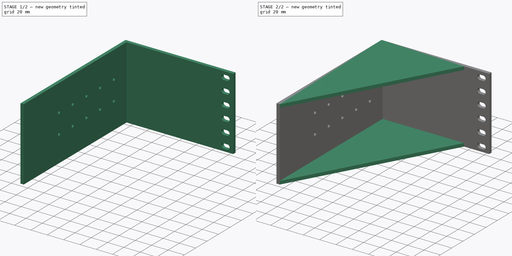
[diagram: build sequence overview — one tinted view per stage of 2, left to right]
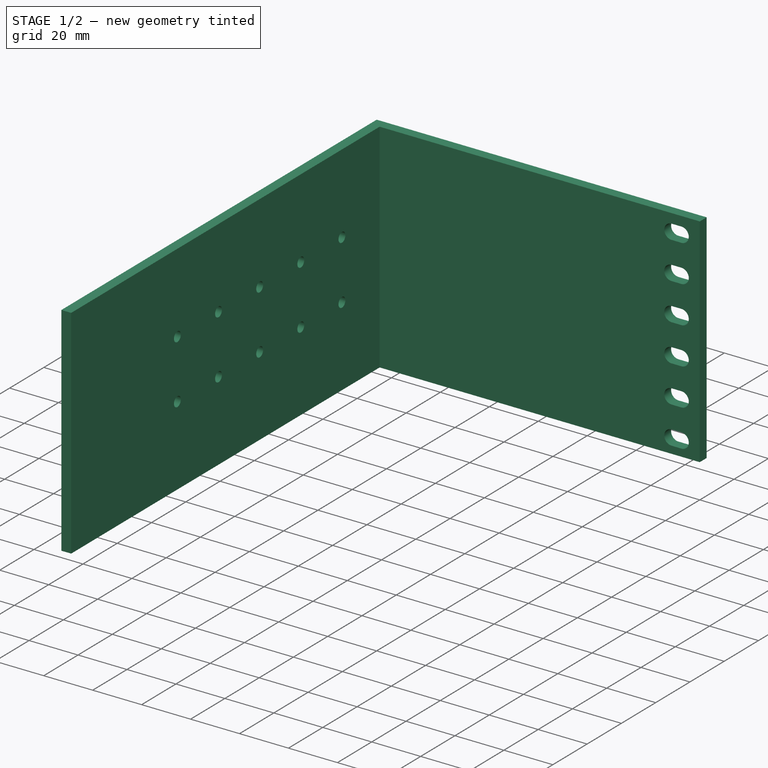
[diagram: stage 1 of 2 — iso view after this stage's code; geometry added in this stage tinted green]
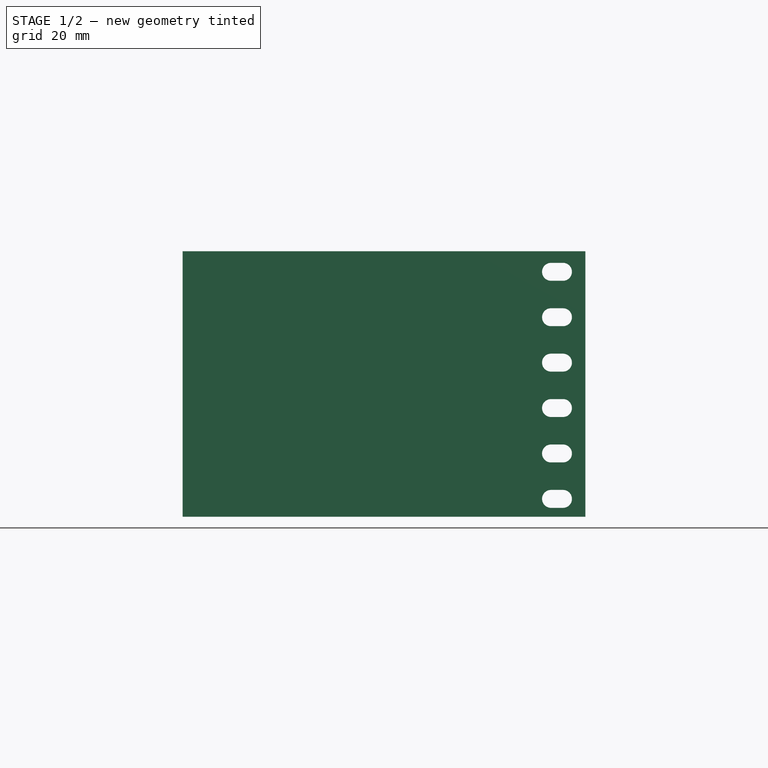
[diagram: stage 1 of 2 — front view after this stage's code; geometry added in this stage tinted green]
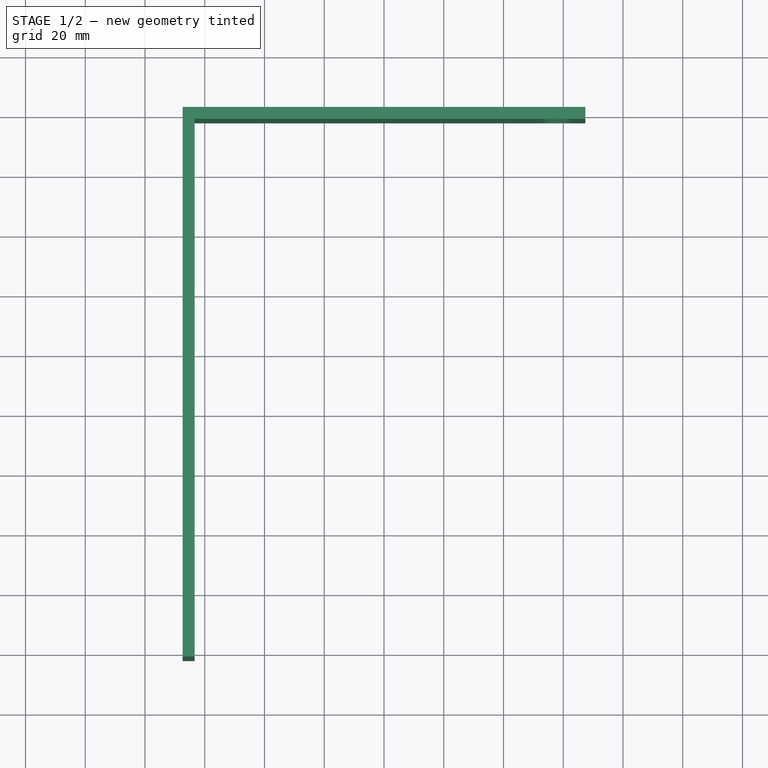
[diagram: stage 1 of 2 — top view after this stage's code; geometry added in this stage tinted green]
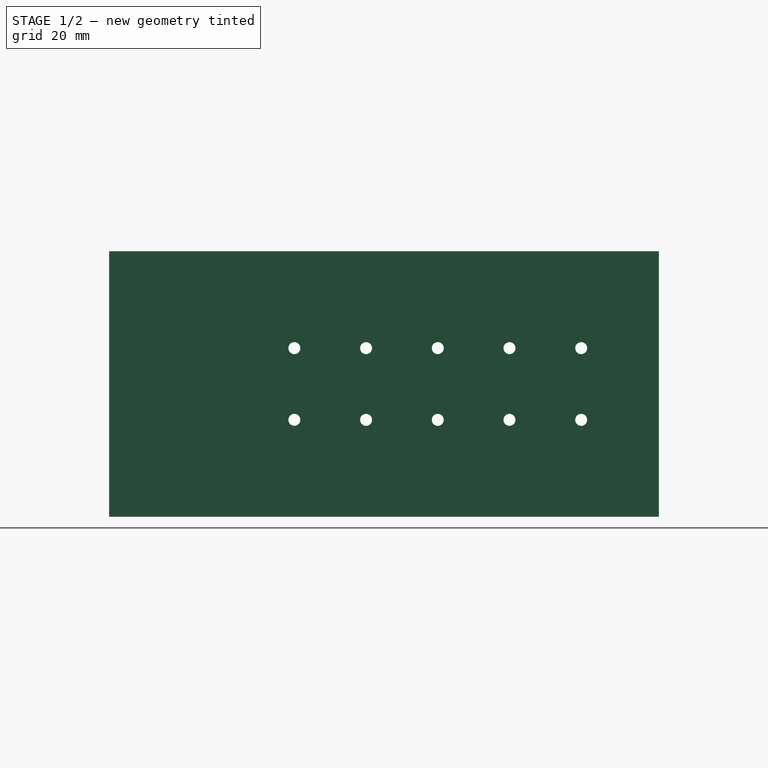
[diagram: stage 1 of 2 — right view after this stage's code; geometry added in this stage tinted green]
FCSTD DOCUMENT  (FreeCAD 1.0R38641 +678 (Git))
Label: mount
License: All rights reserved
LicenseURL: https://en.wikipedia.org/wiki/All_rights_reserved
objects: Sketcher::SketchObject×6, PartDesign::Pad×4, PartDesign::Plane×3, PartDesign::Body×1
note: 28 computed .brp shape members not serialized (recipe doc carries the construction recipe); baked Part::Feature solids carry a one-line shape summary decoded from their .brp

FEATURE [Sketcher::SketchObject] Sketch
  ArcFitTolerance = 1e-06
  AttachmentSupport = -> [XZ_Plane]
  FullyConstrained = true
  MakeInternals = false
  MapMode = 5
  Placement = pos=(0,0,0) rot=(1,0,0;1.5708rad)
  sketch-geometry (65):
    g0: LineSegment StartX=-67.4 StartY=-44.45 StartZ=0 EndX=67.4 EndY=-44.45 EndZ=0
    g1: LineSegment StartX=67.4 StartY=-44.45 StartZ=0 EndX=67.4 EndY=44.45 EndZ=0
    g2: LineSegment StartX=67.4 StartY=44.45 StartZ=0 EndX=-67.4 EndY=44.45 EndZ=0
    g3: LineSegment StartX=-67.4 StartY=44.45 StartZ=0 EndX=-67.4 EndY=-44.45 EndZ=0
    g4: GeomPoint [constr] X=0 Y=0 Z=0
    g5: LineSegment StartX=52.9 StartY=-38.44 StartZ=0 EndX=52.9 EndY=-38.46 EndZ=0
    g6: LineSegment StartX=55.89 StartY=-41.45 StartZ=0 EndX=59.91 EndY=-41.45 EndZ=0
    g7: LineSegment StartX=62.9 StartY=-38.46 StartZ=0 EndX=62.9 EndY=-38.44 EndZ=0
    g8: LineSegment StartX=59.91 StartY=-35.45 StartZ=0 EndX=55.89 EndY=-35.45 EndZ=0
    g9: ArcOfCircle CenterX=55.89 CenterY=-38.44 CenterZ=0 NormalX=0 NormalY=0 NormalZ=1 AngleXU=0 Radius=2.99 StartAngle=1.5708 EndAngle=3.14159
    g10: ArcOfCircle CenterX=55.89 CenterY=-38.46 CenterZ=0 NormalX=0 NormalY=0 NormalZ=1 AngleXU=0 Radius=2.99 StartAngle=3.14159 EndAngle=4.71239
    g11: ArcOfCircle CenterX=59.91 CenterY=-38.46 CenterZ=0 NormalX=0 NormalY=0 NormalZ=1 AngleXU=0 Radius=2.99 StartAngle=4.71239 EndAngle=6.28319
    g12: ArcOfCircle CenterX=59.91 CenterY=-38.44 CenterZ=0 NormalX=0 NormalY=0 NormalZ=1 AngleXU=0 Radius=2.99 StartAngle=-9e-16 EndAngle=1.5708
    g13: GeomPoint [constr] X=52.9 Y=-35.45 Z=0
    g14: GeomPoint [constr] X=62.9 Y=-41.45 Z=0
    g15: LineSegment StartX=52.9 StartY=-23.245 StartZ=0 EndX=52.9 EndY=-23.255 EndZ=0
    g16: LineSegment StartX=55.895 StartY=-26.25 StartZ=0 EndX=59.905 EndY=-26.25 EndZ=0
    g17: LineSegment StartX=62.9 StartY=-23.255 StartZ=0 EndX=62.9 EndY=-23.245 EndZ=0
    g18: LineSegment StartX=59.905 StartY=-20.25 StartZ=0 EndX=55.895 EndY=-20.25 EndZ=0
    g19: ArcOfCircle CenterX=55.895 CenterY=-23.245 CenterZ=0 NormalX=0 NormalY=0 NormalZ=1 AngleXU=0 Radius=2.995 StartAngle=1.5708 EndAngle=3.14159
    g20: ArcOfCircle CenterX=55.895 CenterY=-23.255 CenterZ=0 NormalX=0 NormalY=0 NormalZ=1 AngleXU=0 Radius=2.995 StartAngle=3.14159 EndAngle=4.71239
    g21: ArcOfCircle CenterX=59.905 CenterY=-23.255 CenterZ=0 NormalX=0 NormalY=0 NormalZ=1 AngleXU=0 Radius=2.995 StartAngle=4.71239 EndAngle=6.28319
    g22: ArcOfCircle CenterX=59.905 CenterY=-23.245 CenterZ=0 NormalX=0 NormalY=0 NormalZ=1 AngleXU=0 Radius=2.995 StartAngle=0 EndAngle=1.5708
    g23: GeomPoint [constr] X=52.9 Y=-20.25 Z=0
    g24: GeomPoint [constr] X=62.9 Y=-26.25 Z=0
    g25: LineSegment StartX=52.9 StartY=-8.045 StartZ=0 EndX=52.9 EndY=-8.055 EndZ=0
    g26: LineSegment StartX=55.895 StartY=-11.05 StartZ=0 EndX=59.905 EndY=-11.05 EndZ=0
    g27: LineSegment StartX=62.9 StartY=-8.055 StartZ=0 EndX=62.9 EndY=-8.045 EndZ=0
    g28: LineSegment StartX=59.905 StartY=-5.05 StartZ=0 EndX=55.895 EndY=-5.05 EndZ=0
    g29: ArcOfCircle CenterX=55.895 CenterY=-8.045 CenterZ=0 NormalX=0 NormalY=0 NormalZ=1 AngleXU=0 Radius=2.995 StartAngle=1.5708 EndAngle=3.14159
    g30: ArcOfCircle CenterX=55.895 CenterY=-8.055 CenterZ=0 NormalX=0 NormalY=0 NormalZ=1 AngleXU=0 Radius=2.995 StartAngle=3.14159 EndAngle=4.71239
    g31: ArcOfCircle CenterX=59.905 CenterY=-8.055 CenterZ=0 NormalX=0 NormalY=0 NormalZ=1 AngleXU=0 Radius=2.995 StartAngle=4.71239 EndAngle=6.28319
    g32: ArcOfCircle CenterX=59.905 CenterY=-8.045 CenterZ=0 NormalX=0 NormalY=0 NormalZ=1 AngleXU=0 Radius=2.995 StartAngle=0 EndAngle=1.5708
    g33: GeomPoint [constr] X=52.9 Y=-5.05 Z=0
    g34: GeomPoint [constr] X=62.9 Y=-11.05 Z=0
    g35: LineSegment StartX=52.9 StartY=7.155 StartZ=0 EndX=52.9 EndY=7.145 EndZ=0
    g36: LineSegment StartX=55.895 StartY=4.15 StartZ=0 EndX=59.905 EndY=4.15 EndZ=0
    g37: LineSegment StartX=62.9 StartY=7.145 StartZ=0 EndX=62.9 EndY=7.155 EndZ=0
    g38: LineSegment StartX=59.905 StartY=10.15 StartZ=0 EndX=55.895 EndY=10.15 EndZ=0
    g39: ArcOfCircle CenterX=55.895 CenterY=7.155 CenterZ=0 NormalX=0 NormalY=0 NormalZ=1 AngleXU=0 Radius=2.995 StartAngle=1.5708 EndAngle=3.14159
    g40: ArcOfCircle CenterX=55.895 CenterY=7.145 CenterZ=0 NormalX=0 NormalY=0 NormalZ=1 AngleXU=0 Radius=2.995 StartAngle=3.14159 EndAngle=4.71239
    g41: ArcOfCircle CenterX=59.905 CenterY=7.145 CenterZ=0 NormalX=0 NormalY=0 NormalZ=1 AngleXU=0 Radius=2.995 StartAngle=4.71239 EndAngle=6.28319
    g42: ArcOfCircle CenterX=59.905 CenterY=7.155 CenterZ=0 NormalX=0 NormalY=0 NormalZ=1 AngleXU=0 Radius=2.995 StartAngle=0 EndAngle=1.5708
    g43: GeomPoint [constr] X=52.9 Y=10.15 Z=0
    g44: GeomPoint [constr] X=62.9 Y=4.15 Z=0
    g45: LineSegment StartX=52.9 StartY=22.355 StartZ=0 EndX=52.9 EndY=22.345 EndZ=0
    g46: LineSegment StartX=55.895 StartY=19.35 StartZ=0 EndX=59.905 EndY=19.35 EndZ=0
    g47: LineSegment StartX=62.9 StartY=22.345 StartZ=0 EndX=62.9 EndY=22.355 EndZ=0
    g48: LineSegment StartX=59.905 StartY=25.35 StartZ=0 EndX=55.895 EndY=25.35 EndZ=0
    g49: ArcOfCircle CenterX=55.895 CenterY=22.355 CenterZ=0 NormalX=0 NormalY=0 NormalZ=1 AngleXU=0 Radius=2.995 StartAngle=1.5708 EndAngle=3.14159
    g50: ArcOfCircle CenterX=55.895 CenterY=22.345 CenterZ=0 NormalX=0 NormalY=0 NormalZ=1 AngleXU=0 Radius=2.995 StartAngle=3.14159 EndAngle=4.71239
    g51: ArcOfCircle CenterX=59.905 CenterY=22.345 CenterZ=0 NormalX=0 NormalY=0 NormalZ=1 AngleXU=0 Radius=2.995 StartAngle=4.71239 EndAngle=6.28319
    g52: ArcOfCircle CenterX=59.905 CenterY=22.355 CenterZ=0 NormalX=0 NormalY=0 NormalZ=1 AngleXU=0 Radius=2.995 StartAngle=0 EndAngle=1.5708
    g53: GeomPoint [constr] X=52.9 Y=25.35 Z=0
    g54: GeomPoint [constr] X=62.9 Y=19.35 Z=0
    g55: LineSegment StartX=52.9 StartY=37.555 StartZ=0 EndX=52.9 EndY=37.545 EndZ=0
    g56: LineSegment StartX=55.895 StartY=34.55 StartZ=0 EndX=59.905 EndY=34.55 EndZ=0
    g57: LineSegment StartX=62.9 StartY=37.545 StartZ=0 EndX=62.9 EndY=37.555 EndZ=0
    g58: LineSegment StartX=59.905 StartY=40.55 StartZ=0 EndX=55.895 EndY=40.55 EndZ=0
    g59: ArcOfCircle CenterX=55.895 CenterY=37.555 CenterZ=0 NormalX=0 NormalY=0 NormalZ=1 AngleXU=0 Radius=2.995 StartAngle=1.5708 EndAngle=3.14159
    g60: ArcOfCircle CenterX=55.895 CenterY=37.545 CenterZ=0 NormalX=0 NormalY=0 NormalZ=1 AngleXU=0 Radius=2.995 StartAngle=3.14159 EndAngle=4.71239
    g61: ArcOfCircle CenterX=59.905 CenterY=37.545 CenterZ=0 NormalX=0 NormalY=0 NormalZ=1 AngleXU=0 Radius=2.995 StartAngle=4.71239 EndAngle=6.28319
    g62: ArcOfCircle CenterX=59.905 CenterY=37.555 CenterZ=0 NormalX=0 NormalY=0 NormalZ=1 AngleXU=0 Radius=2.995 StartAngle=2e-16 EndAngle=1.5708
    g63: GeomPoint [constr] X=52.9 Y=40.55 Z=0
    g64: GeomPoint [constr] X=62.9 Y=34.55 Z=0
  constraints (156):
    c: Coincident(g0,g1)
    c: Coincident(g1,g2)
    c: Coincident(g2,g3)
    c: Coincident(g3,g0)
    c: Horizontal(g0)
    c: Horizontal(g2)
    c: Vertical(g1)
    c: Vertical(g3)
    c: Symmetric(g2,g0,g4)
    c: Distance(g1,g3) = 134.8
    c: Distance(g0,g2) = 88.9
    c: Coincident(g4,g-1)
    c: Tangent(g5,g9) = -1.5708
    c: Tangent(g5,g10) = -1.5708
    c: Tangent(g6,g10) = -1.5708
    c: Tangent(g6,g11) = -1.5708
    c: Tangent(g7,g11) = -1.5708
    c: Tangent(g7,g12) = -1.5708
    c: Tangent(g8,g12) = -1.5708
    c: Tangent(g8,g9) = -1.5708
    c: Vertical(g5)
    c: Vertical(g7)
    c: Horizontal(g6)
    c: Horizontal(g8)
    c: Equal(g9,g10)
    c: Equal(g10,g11)
    c: Equal(g11,g12)
    c: PointOnObject(g13,g5)
    c: PointOnObject(g13,g8)
    c: PointOnObject(g14,g6)
    c: PointOnObject(g14,g7)
    c: Distance(g5,g7) = 10
    c: Distance(g6,g8) = 6
    c: Distance(g7,g1) = 4.5
    c: Distance(g0,g6) = 3
    c: Tangent(g15,g19) = -1.5708
    c: Tangent(g15,g20) = -1.5708
    c: Tangent(g16,g20) = -1.5708
    c: Tangent(g16,g21) = -1.5708
    c: Tangent(g17,g21) = -1.5708
    c: Tangent(g17,g22) = -1.5708
    c: Tangent(g18,g22) = -1.5708
    c: Tangent(g18,g19) = -1.5708
    c: Vertical(g15)
    c: Vertical(g17)
    c: Horizontal(g16)
    c: Horizontal(g18)
    c: Equal(g19,g20)
    c: Equal(g20,g21)
    c: Equal(g21,g22)
    c: PointOnObject(g23,g15)
    c: PointOnObject(g23,g18)
    c: PointOnObject(g24,g16)
    c: PointOnObject(g24,g17)
    c: Distance(g15,g17) = 10
    c: Distance(g16,g18) = 6
    c: Distance(g17,g1) = 4.5
    c: Distance(g8,g16) = 9.2
    c: Tangent(g25,g29) = -1.5708
    c: Tangent(g25,g30) = -1.5708
    c: Tangent(g26,g30) = -1.5708
    c: Tangent(g26,g31) = -1.5708
    c: Tangent(g27,g31) = -1.5708
    c: Tangent(g27,g32) = -1.5708
    c: Tangent(g28,g32) = -1.5708
    c: Tangent(g28,g29) = -1.5708
    c: Vertical(g25)
    c: Vertical(g27)
    c: Horizontal(g26)
    c: Horizontal(g28)
    c: Equal(g29,g30)
    c: Equal(g30,g31)
    c: Equal(g31,g32)
    c: PointOnObject(g33,g25)
    c: PointOnObject(g33,g28)
    c: PointOnObject(g34,g26)
    c: PointOnObject(g34,g27)
    c: Distance(g25,g27) = 10
    c: Distance(g26,g28) = 6
    c: Distance(g27,g1) = 4.5
    c: Distance(g18,g26) = 9.2
    c: DistanceX(g10,g12) = 4.02
    c: DistanceX(g19,g22) = 4.01
    c: DistanceX(g29,g32) = 4.01
    c: Tangent(g35,g39) = -1.5708
    c: Tangent(g35,g40) = -1.5708
    c: Tangent(g36,g40) = -1.5708
    c: Tangent(g36,g41) = -1.5708
    c: Tangent(g37,g41) = -1.5708
    c: Tangent(g37,g42) = -1.5708
    c: Tangent(g38,g42) = -1.5708
    c: Tangent(g38,g39) = -1.5708
    c: Vertical(g35)
    c: Vertical(g37)
    c: Horizontal(g36)
    c: Horizontal(g38)
    c: Equal(g39,g40)
    c: Equal(g40,g41)
    c: Equal(g41,g42)
    c: PointOnObject(g43,g35)
    c: PointOnObject(g43,g38)
    c: PointOnObject(g44,g36)
    c: PointOnObject(g44,g37)
    c: Distance(g35,g37) = 10
    c: Distance(g36,g38) = 6
    c: Distance(g28,g36) = 9.2
    c: Distance(g37,g1) = 4.5
    c: DistanceX(g39,g42) = 4.01
    c: Tangent(g45,g49) = -1.5708
    c: Tangent(g45,g50) = -1.5708
    c: Tangent(g46,g50) = -1.5708
    c: Tangent(g46,g51) = -1.5708
    c: Tangent(g47,g51) = -1.5708
    c: Tangent(g47,g52) = -1.5708
    c: Tangent(g48,g52) = -1.5708
    c: Tangent(g48,g49) = -1.5708
    c: Vertical(g45)
    c: Vertical(g47)
    c: Horizontal(g46)
    c: Horizontal(g48)
    c: Equal(g49,g50)
    c: Equal(g50,g51)
    c: Equal(g51,g52)
    c: PointOnObject(g53,g45)
    c: PointOnObject(g53,g48)
    c: PointOnObject(g54,g46)
    c: PointOnObject(g54,g47)
    c: Distance(g45,g47) = 10
    c: Distance(g46,g48) = 6
    c: Distance(g47,g1) = 4.5
    c: Distance(g38,g46) = 9.2
    c: DistanceX(g49,g52) = 4.01
    c: Tangent(g55,g59) = -1.5708
    c: Tangent(g55,g60) = -1.5708
    c: Tangent(g56,g60) = -1.5708
    c: Tangent(g56,g61) = -1.5708
    c: Tangent(g57,g61) = -1.5708
    c: Tangent(g57,g62) = -1.5708
    c: Tangent(g58,g62) = -1.5708
    c: Tangent(g58,g59) = -1.5708
    c: Vertical(g55)
    c: Vertical(g57)
    c: Horizontal(g56)
    c: Horizontal(g58)
    c: Equal(g59,g60)
    c: Equal(g60,g61)
    c: Equal(g61,g62)
    c: PointOnObject(g63,g55)
    c: PointOnObject(g63,g58)
    c: PointOnObject(g64,g56)
    c: PointOnObject(g64,g57)
    c: Distance(g55,g57) = 10
    c: Distance(g56,g58) = 6
    c: Distance(g48,g56) = 9.2
    c: Distance(g57,g1) = 4.5
    c: DistanceX(g59,g62) = 4.01
FEATURE [PartDesign::Pad] Pad
  Direction = (0,-1,2e-16)
  Length = 4
  Length2 = 10
  Midplane = true
  Placement = pos=(0,0,0) rot=(1,0,0;1.5708rad)
  Profile = -> Sketch
  ReferenceAxis = -> Sketch [N_Axis]
  Refine = true
  Suppressed = false
  Type = 0
FEATURE [PartDesign::Plane] DatumPlane
  AttachmentSupport = -> [Pad]
  Length = 81.2356
  MapMode = 5
  Placement = pos=(-67.4,0,0) rot=(0.707107,0,-0.707107;3.14159rad)
  ResizeMode = 0
  Width = 61.7856
FEATURE [Sketcher::SketchObject] Sketch001
  ArcFitTolerance = 1e-06
  AttachmentSupport = -> [DatumPlane]
  ExternalGeometry = -> [Pad]
  FullyConstrained = true
  MakeInternals = false
  MapMode = 5
  Placement = pos=(-67.4,0,0) rot=(0.707107,0,-0.707107;3.14159rad)
  sketch-geometry (14):
    g0: LineSegment StartX=-44.45 StartY=2 StartZ=0 EndX=44.45 EndY=2 EndZ=0
    g1: LineSegment StartX=44.45 StartY=2 StartZ=0 EndX=44.45 EndY=182 EndZ=0
    g2: LineSegment StartX=44.45 StartY=182 StartZ=0 EndX=-44.45 EndY=182 EndZ=0
    g3: LineSegment StartX=-44.45 StartY=182 StartZ=0 EndX=-44.45 EndY=2 EndZ=0
    g4: Circle CenterX=12 CenterY=24 CenterZ=0 NormalX=0 NormalY=0 NormalZ=1 AngleXU=0 Radius=2
    g5: Circle CenterX=12 CenterY=48 CenterZ=0 NormalX=0 NormalY=0 NormalZ=1 AngleXU=0 Radius=2
    g6: Circle CenterX=-12 CenterY=24 CenterZ=0 NormalX=0 NormalY=0 NormalZ=1 AngleXU=0 Radius=2
    g7: Circle CenterX=-12 CenterY=120 CenterZ=0 NormalX=0 NormalY=0 NormalZ=1 AngleXU=0 Radius=2
    g8: Circle CenterX=-12 CenterY=48 CenterZ=0 NormalX=0 NormalY=0 NormalZ=1 AngleXU=0 Radius=2
    g9: Circle CenterX=12 CenterY=72 CenterZ=0 NormalX=0 NormalY=0 NormalZ=1 AngleXU=0 Radius=2
    g10: Circle CenterX=-12 CenterY=72 CenterZ=0 NormalX=0 NormalY=0 NormalZ=1 AngleXU=0 Radius=2
    g11: Circle CenterX=12 CenterY=96 CenterZ=0 NormalX=0 NormalY=0 NormalZ=1 AngleXU=0 Radius=2
    g12: Circle CenterX=-12 CenterY=96 CenterZ=0 NormalX=0 NormalY=0 NormalZ=1 AngleXU=0 Radius=2
    g13: Circle CenterX=12 CenterY=120 CenterZ=0 NormalX=0 NormalY=0 NormalZ=1 AngleXU=0 Radius=2
  constraints (41):
    c: Coincident(g0,g1)
    c: Coincident(g1,g2)
    c: Coincident(g2,g3)
    c: Coincident(g3,g0)
    c: Horizontal(g0)
    c: Horizontal(g2)
    c: Vertical(g1)
    c: Vertical(g3)
    c: Coincident(g0,g-3)
    c: Distance(g1,g3) = 88.9
    c: Distance(g0,g2) = 180
    c: Diameter(g4) = 4
    c: Diameter(g5) = 4
    c: Diameter(g6) = 4
    c: Diameter(g7) = 4
    c: Diameter(g8) = 4
    c: Diameter(g9) = 4
    c: Diameter(g10) = 4
    c: Diameter(g11) = 4
    c: Diameter(g12) = 4
    c: Diameter(g13) = 4
    c: Distance(g4,g1) = 30.45
    c: Distance(g4,g0) = 20
    c: Distance(g5,g1) = 30.45
    c: Distance(g5,g4) = 20
    c: Distance(g6,g0) = 20
    c: Distance(g6,g4) = 20
    c: Distance(g8,g5) = 20
    c: Distance(g8,g6) = 20
    c: Distance(g9,g5) = 20
    c: Distance(g9,g1) = 30.45
    c: Distance(g10,g9) = 20
    c: Distance(g10,g8) = 20
    c: Distance(g11,g9) = 20
    c: Distance(g12,g11) = 20
    c: Distance(g11,g1) = 30.45
    c: Distance(g12,g10) = 20
    c: Distance(g13,g11) = 20
    c: Distance(g7,g12) = 20
    c: Distance(g13,g1) = 30.45
    c: Distance(g7,g13) = 20
FEATURE [PartDesign::Pad] Pad001
  BaseFeature = -> Pad
  Direction = (-1,0,-2e-16)
  Length = 0
  Length2 = 4
  Offset = 10
  Placement = pos=(0,0,0) rot=(1,0,0;1.5708rad)
  Profile = -> Sketch001
  ReferenceAxis = -> Sketch001 [N_Axis]
  Refine = true
  Suppressed = false
  Type = 4
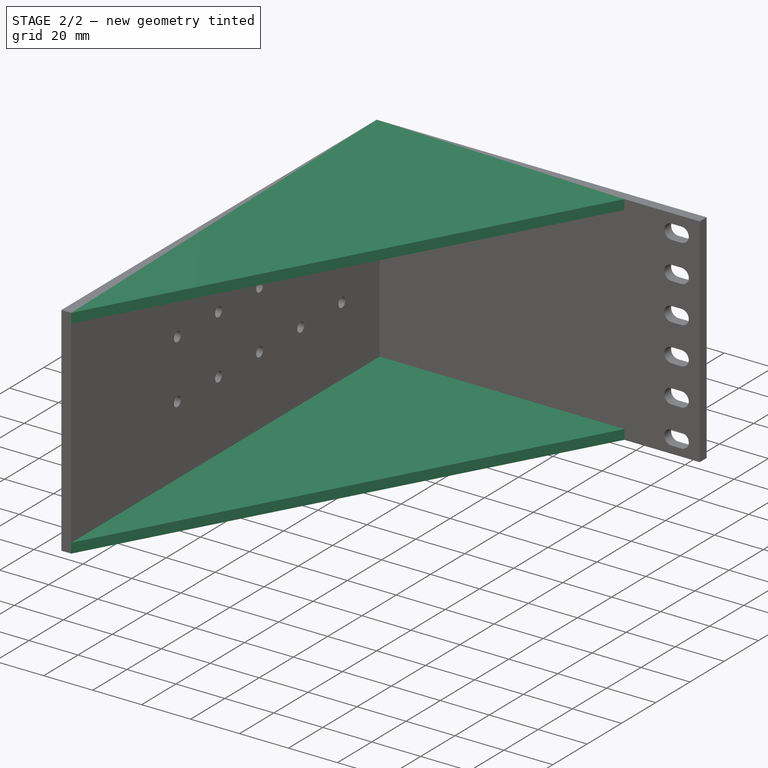
[diagram: stage 2 of 2 — iso view after this stage's code; geometry added in this stage tinted green]
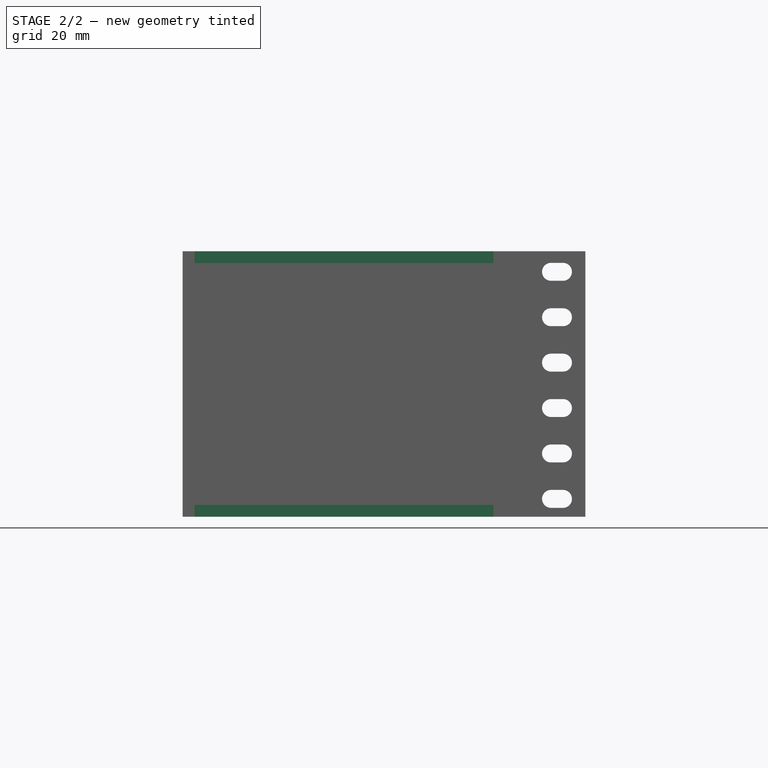
[diagram: stage 2 of 2 — front view after this stage's code; geometry added in this stage tinted green]
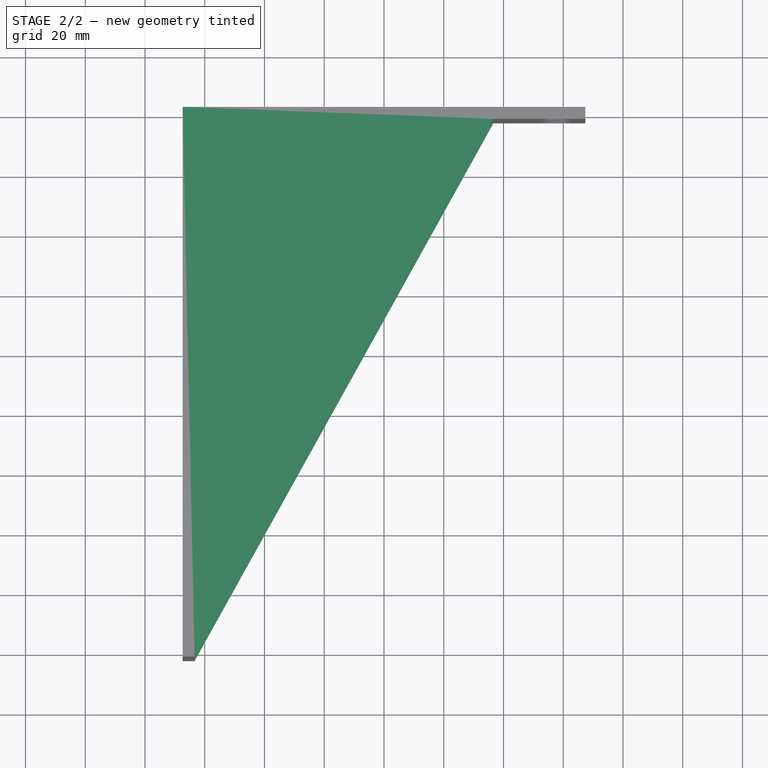
[diagram: stage 2 of 2 — top view after this stage's code; geometry added in this stage tinted green]
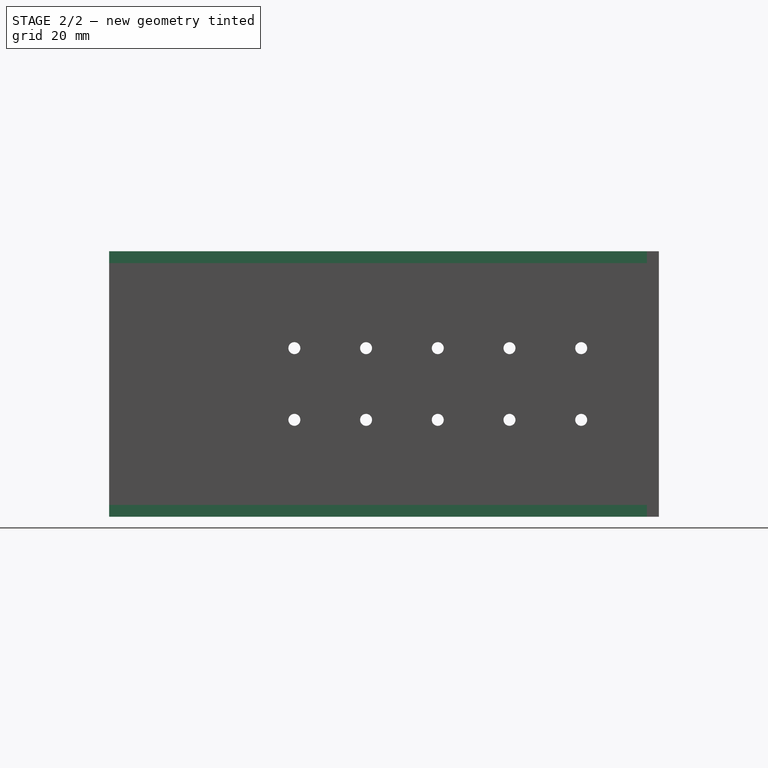
[diagram: stage 2 of 2 — right view after this stage's code; geometry added in this stage tinted green]
FEATURE [PartDesign::Plane] DatumPlane001
  AttachmentSupport = -> [Pad]
  Length = 105.994
  MapMode = 5
  Placement = pos=(0,1.96e-14,44.45) rot=(0,0,1;3.14159rad)
  ResizeMode = 0
  Width = 63.5941
FEATURE [Sketcher::SketchObject] Sketch004
  ArcFitTolerance = 1e-06
  AttachmentSupport = -> [DatumPlane001]
  ExternalGeometry = -> [Pad001]
  FullyConstrained = true
  MakeInternals = false
  MapMode = 5
  Placement = pos=(0,1.96e-14,44.45) rot=(0,0,1;3.14159rad)
  sketch-geometry (4):
    g0: GeomPoint X=-36.6 Y=2 Z=0
    g1: LineSegment StartX=-36.6 StartY=2 StartZ=0 EndX=63.4 EndY=182 EndZ=0
    g2: LineSegment StartX=63.4 StartY=2 StartZ=0 EndX=-36.6 EndY=2 EndZ=0
    g3: LineSegment StartX=63.4 StartY=182 StartZ=0 EndX=63.4 EndY=2 EndZ=0
  constraints (8):
    c: PointOnObject(g0,g-4)
    c: Coincident(g1,g0)
    c: Coincident(g1,g-3)
    c: Coincident(g2,g-4)
    c: Coincident(g2,g0)
    c: DistanceX(g0,g2) = 100
    c: Coincident(g3,g1)
    c: Coincident(g3,g2)
FEATURE [Sketcher::SketchObject] Sketch002
  ArcFitTolerance = 1e-06
  AttachmentSupport = -> [DatumPlane]
  FullyConstrained = true
  MakeInternals = false
  MapMode = 5
  Placement = pos=(-67.4,0,0) rot=(0.707107,0,-0.707107;3.14159rad)
FEATURE [PartDesign::Pad] Pad002
  BaseFeature = -> Pad001
  Direction = (0,0,1)
  Length = 0
  Length2 = 4
  Midplane = true
  Placement = pos=(0,0,0) rot=(1,0,0;1.5708rad)
  Profile = -> Sketch004
  ReferenceAxis = -> Sketch004 [N_Axis]
  Refine = true
  Suppressed = false
  Type = 4
FEATURE [Sketcher::SketchObject] Sketch005
  ArcFitTolerance = 1e-06
  AttachmentSupport = -> [Pad002]
  FullyConstrained = true
  MakeInternals = false
  MapMode = 5
  Placement = pos=(0,-1.4e-15,-44.45) rot=(1,0,0;3.14159rad)
FEATURE [PartDesign::Plane] DatumPlane002
  AttachmentSupport = -> [Pad002]
  Length = 105.994
  MapMode = 5
  Placement = pos=(0,-1.4e-15,-44.45) rot=(1,0,0;3.14159rad)
  ResizeMode = 0
  Width = 63.5941
FEATURE [Sketcher::SketchObject] Sketch006
  ArcFitTolerance = 1e-06
  AttachmentSupport = -> [DatumPlane002]
  ExternalGeometry = -> [Pad002]
  FullyConstrained = true
  MakeInternals = false
  MapMode = 5
  Placement = pos=(0,-1.4e-15,-44.45) rot=(1,0,0;3.14159rad)
  sketch-geometry (4):
    g0: GeomPoint X=36.6 Y=2 Z=0
    g1: LineSegment StartX=36.6 StartY=2 StartZ=0 EndX=-63.4 EndY=2 EndZ=0
    g2: LineSegment StartX=-63.4 StartY=182 StartZ=0 EndX=36.6 EndY=2 EndZ=0
    g3: LineSegment StartX=-63.4 StartY=182 StartZ=0 EndX=-63.4 EndY=2 EndZ=0
  constraints (8):
    c: PointOnObject(g0,g-4)
    c: Coincident(g1,g0)
    c: Coincident(g1,g-4)
    c: Coincident(g2,g-3)
    c: Coincident(g2,g0)
    c: Coincident(g3,g2)
    c: Coincident(g3,g1)
    c: DistanceX(g1,g0) = 100
FEATURE [PartDesign::Pad] Pad003
  BaseFeature = -> Pad002
  Direction = (0,0,-1)
  Length = 0
  Length2 = 4
  Midplane = true
  Placement = pos=(0,0,0) rot=(1,0,0;1.5708rad)
  Profile = -> Sketch006
  ReferenceAxis = -> Sketch006 [N_Axis]
  Refine = true
  Suppressed = false
  Type = 4
FEATURE [PartDesign::Body] Body  label="Zawartość"
  AllowCompound = false
  Group = -> [Sketch,Pad,DatumPlane,Sketch001,Pad001,Sketch002,DatumPlane001,Sketch004,Pad002,Sketch005,DatumPlane002,Sketch006,Pad003]
  Origin = -> Origin
  Tip = -> Pad003
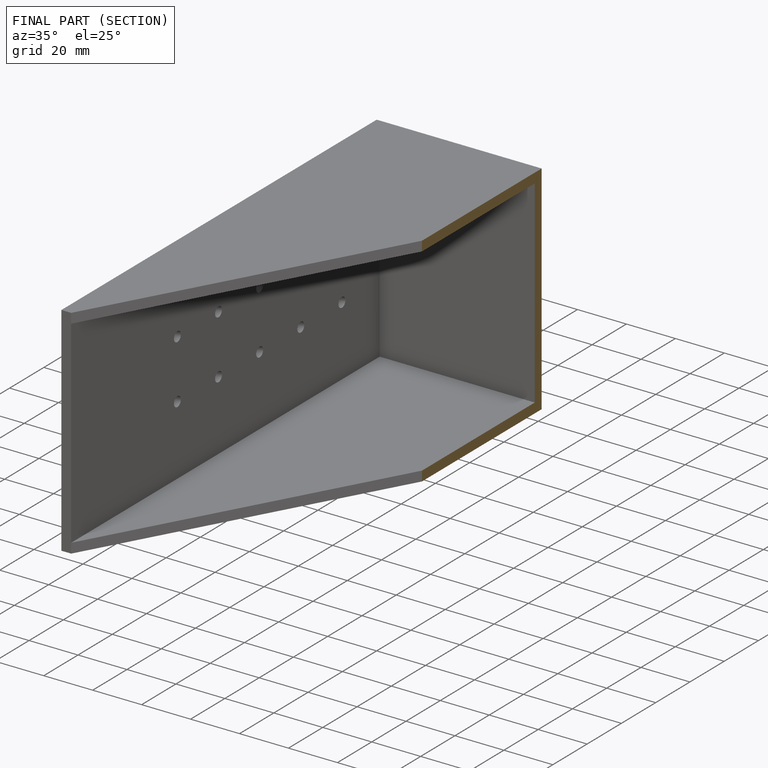
[diagram: finished part — half-section view (interior)]
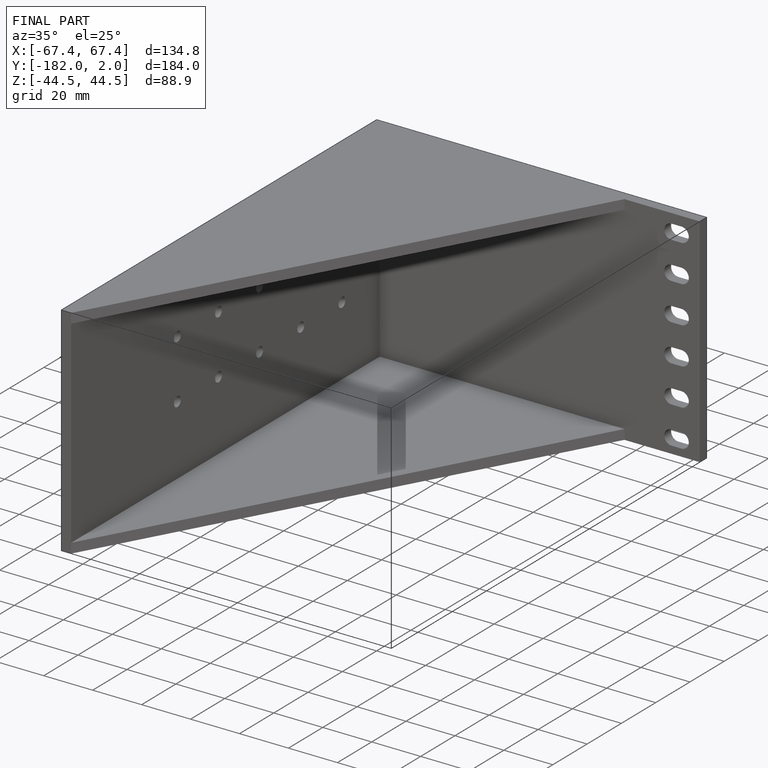
[diagram: finished part — iso view with bounding-box wireframe]
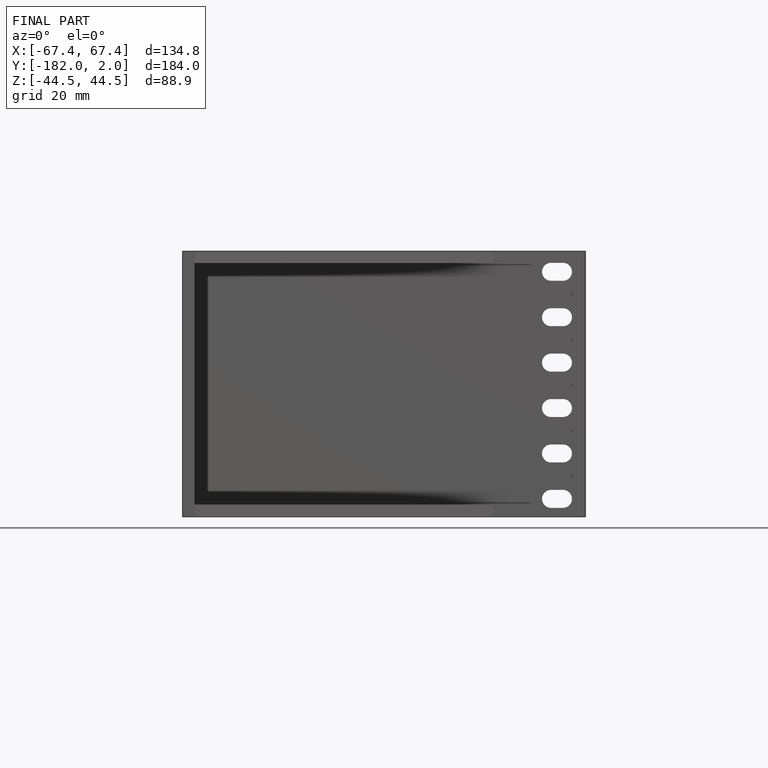
[diagram: finished part — front view with bounding-box wireframe]
